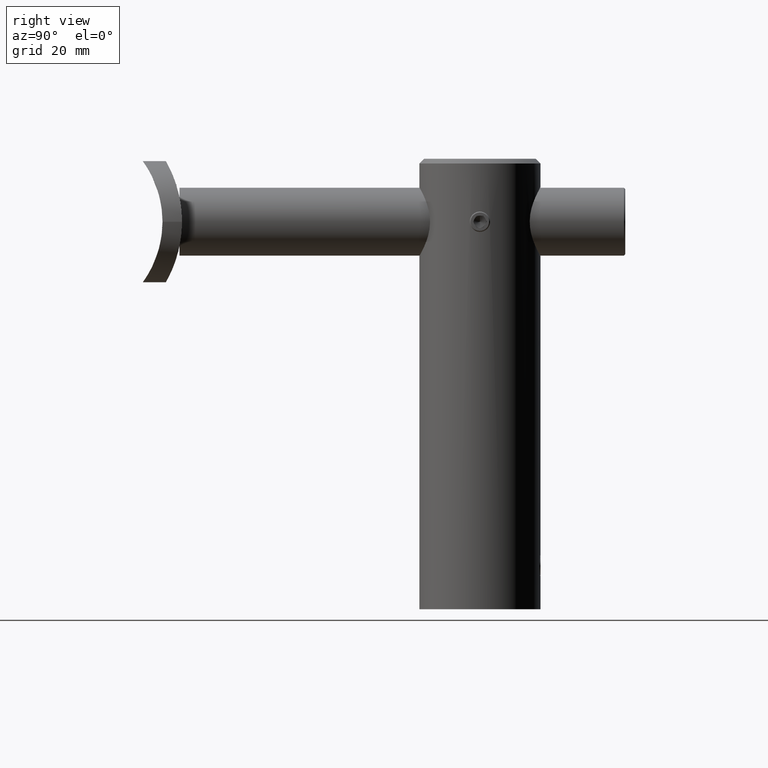
[diagram: clean part render]
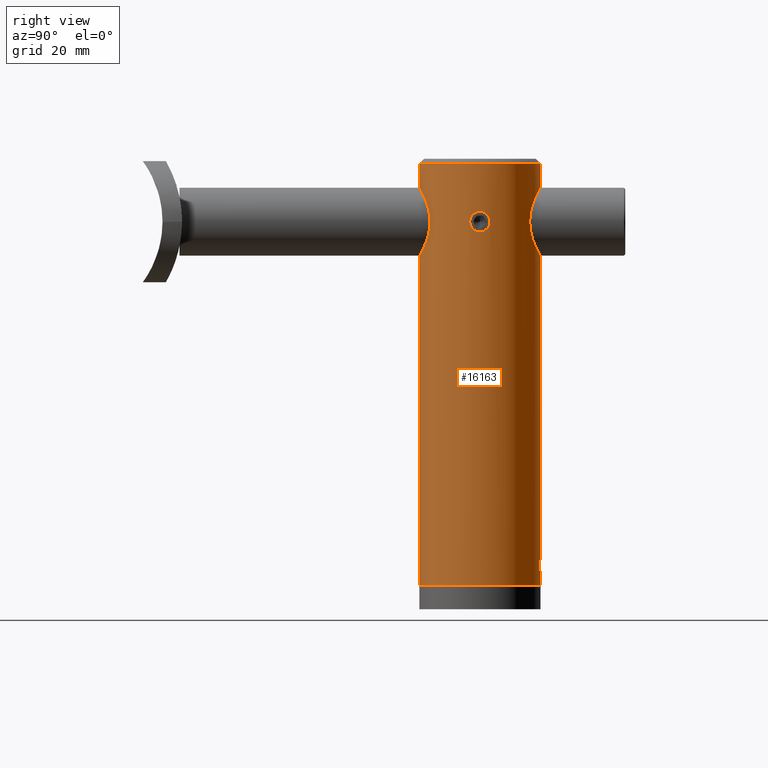
[diagram: same view with one face highlighted and labeled with its STEP entity id]
A machine part, right view. The second image highlights one B-rep face of the part: STEP entity #16163.
In plain terms, the highlighted cylindrical surface (partial cylindrical patch) has radius 12.5 mm, axis along (0, 0, -1).
Its self-contained STEP definition (entity closure, byte-faithful):
#30 = CARTESIAN_POINT ( 'NONE',  ( 12.32232325748718438, -2.100083223394554999, 74.86252851512971063 ) ) ;
#45 = CARTESIAN_POINT ( 'NONE',  ( -9.798441303750187635E-23, 12.50000000000000355, 1.900000000000005684 ) ) ;
#93 = CARTESIAN_POINT ( 'NONE',  ( 2.086330489974699276, 12.32468933921310850, 3.724121591978968304 ) ) ;
#159 = CIRCLE ( 'NONE', #11856, 12.50000000000000178 ) ;
#162 = CARTESIAN_POINT ( 'NONE',  ( 0.6771302859603564039, 12.48229535687993241, 2.007412991424085025 ) ) ;
#181 = LINE ( 'NONE', #18752, #7036 ) ;
#244 = CARTESIAN_POINT ( 'NONE',  ( 12.43473698676051242, 1.280796030087359538, 73.33015633037285852 ) ) ;
#256 = CARTESIAN_POINT ( 'NONE',  ( 7.099833554373472744, -10.28797178943788104, 74.75572396004345421 ) ) ;
#257 = VERTEX_POINT ( 'NONE', #45 ) ;
#316 = CARTESIAN_POINT ( 'NONE',  ( 2.327268730588589740, -12.28355408712936381, 81.71186112651896849 ) ) ;
#332 = VERTEX_POINT ( 'NONE', #12399 ) ;
#378 = CARTESIAN_POINT ( 'NONE',  ( 6.912668111617618294, -10.41480574227799494, 76.63725143042471188 ) ) ;
#379 = CARTESIAN_POINT ( 'NONE',  ( 1.310074275435993587E-16, 12.49999999999999467, 82.09999999999999432 ) ) ;
#431 = CARTESIAN_POINT ( 'NONE',  ( 12.39978901785039334, 1.582696428115945908, 76.38715167861954569 ) ) ;
#443 = CARTESIAN_POINT ( 'NONE',  ( 4.707102817139631412, -11.58512768093195433, 69.66537265374721244 ) ) ;
#450 = DIRECTION ( 'NONE',  ( -0.000000000000000000, 1.098045870766271941E-16, -1.000000000000000000 ) ) ;
#505 = CARTESIAN_POINT ( 'NONE',  ( 12.49766874747620093, 0.2765420468446641022, 77.08624780064435811 ) ) ;
#513 = CARTESIAN_POINT ( 'NONE',  ( 3.597349250370588170, -11.97780161950915279, 81.13814261268855432 ) ) ;
#738 = CARTESIAN_POINT ( 'NONE',  ( 4.346314444032335800, 11.72684879340800812, 69.36723664936097578 ) ) ;
#802 = CARTESIAN_POINT ( 'NONE',  ( 6.634052515645166181, 10.59483006856256182, 72.45976110248518864 ) ) ;
#882 = CARTESIAN_POINT ( 'NONE',  ( 0.000000000000000000, 12.50000000000000000, 1.372557338457839692E-15 ) ) ;
#931 = CARTESIAN_POINT ( 'NONE',  ( 6.148078400945676592, 10.88734605281069179, 78.58038588945871084 ) ) ;
#936 = LINE ( 'NONE', #12495, #3782 ) ;
#1208 = VERTEX_POINT ( 'NONE', #10619 ) ;
#1370 = CARTESIAN_POINT ( 'NONE',  ( 1.992840048957692511, 12.34023651949286027, 3.323561581767618289 ) ) ;
#1440 = CARTESIAN_POINT ( 'NONE',  ( 2.099895493303238769, 12.32235525086057137, 4.275280821264919595 ) ) ;
#1496 = CARTESIAN_POINT ( 'NONE',  ( 12.33355821179406497, -2.033241785620694575, 74.45712843739981679 ) ) ;
#1575 = ORIENTED_EDGE ( 'NONE', *, *, #17317, .F. ) ;
#1585 = LINE ( 'NONE', #16051, #7720 ) ;
#1628 = CARTESIAN_POINT ( 'NONE',  ( 6.970107993329720685E-17, 12.50000000000000355, 6.099999999999998757 ) ) ;
#1689 = CARTESIAN_POINT ( 'NONE',  ( 12.48211517639016854, -0.6802983101495032603, 73.00854562603635145 ) ) ;
#1749 = EDGE_CURVE ( 'NONE', #8994, #1208, #18185, .T. ) ;
#1755 = CARTESIAN_POINT ( 'NONE',  ( 12.50000000000000178, -4.742557830427097865E-15, 72.90000000000000568 ) ) ;
#1764 = CARTESIAN_POINT ( 'NONE',  ( 4.699254457469034030, -11.58459427111669449, 80.32723125532280051 ) ) ;
#1832 = CARTESIAN_POINT ( 'NONE',  ( 0.9553685758214884860, -12.46569958972208880, 82.03946455910856628 ) ) ;
#1892 = CARTESIAN_POINT ( 'NONE',  ( 12.35680486868406192, 1.887385030941196362, 75.93099846367726968 ) ) ;
#1902 = CARTESIAN_POINT ( 'NONE',  ( 5.637531711305975080, -11.16027666235575388, 79.34016184945231487 ) ) ;
#1941 = CARTESIAN_POINT ( 'NONE',  ( 0.000000000000000000, -6.829089316830601455E-15, 87.00000000000000000 ) ) ;
#1962 = CARTESIAN_POINT ( 'NONE',  ( 6.853982002503374638, -10.45369377733144844, 76.86763025503725544 ) ) ;
#2011 = CARTESIAN_POINT ( 'NONE',  ( 12.33211929933789897, 2.044525624529518470, 74.44799400489414154 ) ) ;
#2024 = CARTESIAN_POINT ( 'NONE',  ( 5.186797260141184474, -11.37442896416549054, 70.14630031359378393 ) ) ;
#2126 = CIRCLE ( 'NONE', #15287, 12.49999999999999645 ) ;
#2248 = CARTESIAN_POINT ( 'NONE',  ( 6.713868405384194382, 10.54423150536102938, 72.67849907081439653 ) ) ;
#2318 = CARTESIAN_POINT ( 'NONE',  ( 2.330508779459668389, 12.28868335539653955, 81.72272208563961726 ) ) ;
#2394 = CARTESIAN_POINT ( 'NONE',  ( 6.364631587517307842, 10.76036465851575663, 78.18015725607449440 ) ) ;
#2456 = CARTESIAN_POINT ( 'NONE',  ( 7.099863319915301396, 10.28795124725935572, 75.48272081303905168 ) ) ;
#2502 = CARTESIAN_POINT ( 'NONE',  ( 1.530808498934191719E-15, -12.50000000000000178, 24.80688495222045375 ) ) ;
#2523 = CARTESIAN_POINT ( 'NONE',  ( 6.722015453373491489, 10.54080125387373634, 77.33161824979872279 ) ) ;
#2531 = VERTEX_POINT ( 'NONE', #11446 ) ;
#2590 = ORIENTED_EDGE ( 'NONE', *, *, #16488, .F. ) ;
#2892 = CARTESIAN_POINT ( 'NONE',  ( 1.887385030941209907, 12.35680486868406369, 3.069001536322709889 ) ) ;
#2915 = VERTEX_POINT ( 'NONE', #4497 ) ;
#3075 = CARTESIAN_POINT ( 'NONE',  ( 12.43448438498407427, -1.292831960822527160, 73.32272558053072942 ) ) ;
#3133 = CARTESIAN_POINT ( 'NONE',  ( 12.36678782163336621, -1.821665953450996689, 76.05369584079291201 ) ) ;
#3276 = CARTESIAN_POINT ( 'NONE',  ( 12.33366651879309472, 2.032587617967170246, 75.54540937349550234 ) ) ;
#3291 = CARTESIAN_POINT ( 'NONE',  ( 4.357488413051599174, -11.72285358696204582, 69.37543835206957965 ) ) ;
#3356 = CARTESIAN_POINT ( 'NONE',  ( 1.479114197289397135E-28, 12.49999999999999645, 67.90000000000000568 ) ) ;
#3415 = CARTESIAN_POINT ( 'NONE',  ( 12.46584558724483216, 0.9321576868460880183, 73.11319783095291314 ) ) ;
#3480 = CARTESIAN_POINT ( 'NONE',  ( 12.42318353256701258, 1.387157736859872204, 76.58269111836068532 ) ) ;
#3492 = CARTESIAN_POINT ( 'NONE',  ( 6.363243337331817351, -10.76119357562657264, 71.81699247692637300 ) ) ;
#3497 = EDGE_CURVE ( 'NONE', #8994, #332, #181, .T. ) ;
#3740 = AXIS2_PLACEMENT_3D ( 'NONE', #11278, #450, #11348 ) ;
#3778 = CARTESIAN_POINT ( 'NONE',  ( 1.869096526884920673, 12.36157828789706592, 68.14638903365943179 ) ) ;
#3782 = VECTOR ( 'NONE', #18777, 1000.000000000000000 ) ;
#3864 = ORIENTED_EDGE ( 'NONE', *, *, #1749, .F. ) ;
#3905 = EDGE_CURVE ( 'NONE', #13220, #2531, #7791, .T. ) ;
#3977 = CARTESIAN_POINT ( 'NONE',  ( 2.319323625872139250, 12.28506725716602510, 68.28537096905358794 ) ) ;
#4119 = EDGE_CURVE ( 'NONE', #14082, #2915, #159, .T. ) ;
#4277 = DIRECTION ( 'NONE',  ( 0.000000000000000000, 1.000000000000000000, 1.098045870766272064E-16 ) ) ;
#4458 = CARTESIAN_POINT ( 'NONE',  ( 0.2756623671610645698, 12.49768326621186709, 6.086332499710207067 ) ) ;
#4497 = CARTESIAN_POINT ( 'NONE',  ( 1.530808498934192507E-15, -12.50000000000000888, 87.00000000000000000 ) ) ;
#4507 = FACE_OUTER_BOUND ( 'NONE', #13014, .T. ) ;
#4571 = CARTESIAN_POINT ( 'NONE',  ( 12.49768328457756361, -0.2762664775608930090, 72.91366271943154231 ) ) ;
#4702 = CARTESIAN_POINT ( 'NONE',  ( 12.32472383621019851, -2.086126021674024056, 75.27716492244429958 ) ) ;
#4762 = LINE ( 'NONE', #9454, #6681 ) ;
#4782 = CARTESIAN_POINT ( 'NONE',  ( 12.48229535687992886, 0.6771302859603445246, 76.99258700857591009 ) ) ;
#4857 = CARTESIAN_POINT ( 'NONE',  ( 7.052734923715451743, -10.32092856185195728, 75.94404489671642011 ) ) ;
#4897 = CARTESIAN_POINT ( 'NONE',  ( 1.054112223713821850, 12.45599735624381665, 2.178589918335490427 ) ) ;
#4909 = CARTESIAN_POINT ( 'NONE',  ( 12.34023651949286204, 1.992840048957679633, 75.67643841823236528 ) ) ;
#4922 = CARTESIAN_POINT ( 'NONE',  ( 6.862816372559793265, -10.44818337300497468, 73.12045813888653356 ) ) ;
#4983 = CARTESIAN_POINT ( 'NONE',  ( 12.45599735624381488, 1.054112223713804752, 76.82141008166449581 ) ) ;
#4992 = CARTESIAN_POINT ( 'NONE',  ( 1.878213508060257553, -12.36018587133493973, 81.85110017035160013 ) ) ;
#5417 = CARTESIAN_POINT ( 'NONE',  ( 2.542285523396216274, 12.24072011514204128, 68.36667086906037127 ) ) ;
#5487 = CARTESIAN_POINT ( 'NONE',  ( 3.186329035902468743, 12.09508519001899174, 68.63805128578243853 ) ) ;
#5600 = DIRECTION ( 'NONE',  ( -0.000000000000000000, 1.098045870766271941E-16, -1.000000000000000000 ) ) ;
#5844 = CARTESIAN_POINT ( 'NONE',  ( 12.50000000000000178, -0.2743003893079722366, 77.10000000000000853 ) ) ;
#5979 = ORIENTED_EDGE ( 'NONE', *, *, #6389, .F. ) ;
#5982 = CARTESIAN_POINT ( 'NONE',  ( 1.669773426702777730, 12.38820982123450243, 2.719165335797718797 ) ) ;
#6120 = CARTESIAN_POINT ( 'NONE',  ( 2.100052025693301072, 12.32232857426644124, 3.863557181503245452 ) ) ;
#6142 = VERTEX_POINT ( 'NONE', #3356 ) ;
#6181 = CARTESIAN_POINT ( 'NONE',  ( 12.34024839959371711, -1.992762697854680631, 74.32340279117751436 ) ) ;
#6260 = CARTESIAN_POINT ( 'NONE',  ( 4.163804789402312245, -11.78780696279486406, 80.75540257205885553 ) ) ;
#6304 = CARTESIAN_POINT ( 'NONE',  ( 0.2765420468446744273, 12.49766874747620449, 1.913752199355624128 ) ) ;
#6314 = CARTESIAN_POINT ( 'NONE',  ( 12.38820982123449710, 1.669773426702765073, 76.28083466420225989 ) ) ;
#6326 = CARTESIAN_POINT ( 'NONE',  ( 6.357972462635661515, -10.76299649604915842, 78.16845701976458827 ) ) ;
#6389 = EDGE_CURVE ( 'NONE', #14082, #10407, #1585, .T. ) ;
#6400 = CARTESIAN_POINT ( 'NONE',  ( 1.874312031601152340, -12.36740688548128020, 68.13568800573899864 ) ) ;
#6452 = CARTESIAN_POINT ( 'NONE',  ( 12.43467607152728505, 1.281348397245117399, 76.66938118794041657 ) ) ;
#6501 = DIRECTION ( 'NONE',  ( 0.000000000000000000, -1.000000000000000000, 0.000000000000000000 ) ) ;
#6514 = CARTESIAN_POINT ( 'NONE',  ( 12.38831158150507861, 1.678584206747418373, 73.70882371637840436 ) ) ;
#6526 = CARTESIAN_POINT ( 'NONE',  ( 2.330455522349840436, -12.28868556496929365, 68.27727600612421099 ) ) ;
#6564 = EDGE_LOOP ( 'NONE', ( #7035, #7164 ) ) ;
#6681 = VECTOR ( 'NONE', #12621, 1000.000000000000000 ) ;
#6948 = CARTESIAN_POINT ( 'NONE',  ( 5.633085906007541332, 11.16254692090159928, 70.65396086375710638 ) ) ;
#7013 = CARTESIAN_POINT ( 'NONE',  ( 6.863499158220037977, 10.44773442666879859, 76.87726417523570888 ) ) ;
#7035 = ORIENTED_EDGE ( 'NONE', *, *, #7170, .F. ) ;
#7036 = VECTOR ( 'NONE', #8045, 1000.000000000000000 ) ;
#7164 = ORIENTED_EDGE ( 'NONE', *, *, #3905, .F. ) ;
#7170 = EDGE_CURVE ( 'NONE', #2531, #13220, #14471, .T. ) ;
#7503 = CARTESIAN_POINT ( 'NONE',  ( 1.281348397245135606, 12.43467607152728860, 2.330618812059590095 ) ) ;
#7566 = CARTESIAN_POINT ( 'NONE',  ( 12.48874150837816721, -0.5474908082749004867, 72.96791234692787498 ) ) ;
#7568 = CARTESIAN_POINT ( 'NONE',  ( 1.052690134217554307, 12.45612162279729951, 5.822267772036405553 ) ) ;
#7628 = CARTESIAN_POINT ( 'NONE',  ( 12.36656387944244351, -1.823189292361678371, 73.94888903341586683 ) ) ;
#7720 = VECTOR ( 'NONE', #11606, 1000.000000000000000 ) ;
#7730 = ORIENTED_EDGE ( 'NONE', *, *, #19212, .F. ) ;
#7779 = CARTESIAN_POINT ( 'NONE',  ( 3.591928364928691053, -11.97960984808972817, 68.85822097251374885 ) ) ;
#7791 = B_SPLINE_CURVE_WITH_KNOTS ( 'NONE', 3,
 ( #19411, #5844, #15258, #10606, #10484, #13654, #16701, #18153, #9217, #3133, #9083, #18215, #19536, #4702, #12124, #30, #10732, #1496, #6181, #16585, #7628, #11997, #10674, #3075, #16518, #1689, #7566, #4571, #13727, #10542 ),
 .UNSPECIFIED., .F., .F.,
 ( 4, 2, 2, 2, 2, 2, 2, 2, 2, 2, 2, 2, 2, 2, 4 ),
 ( 0.006577226265834288862, 0.007399174158320342629, 0.007810148104563369512, 0.008221122050806396395, 0.008632095997049421543, 0.009043069943292448426, 0.009454043889535475309, 0.009865017835778502192, 0.01027599178202152908, 0.01068696572826455596, 0.01109793967450758284, 0.01150891362075060972, 0.01233086151323666349, 0.01274183545947968343, 0.01315280940572270164 ),
 .UNSPECIFIED. ) ;
#7850 = CARTESIAN_POINT ( 'NONE',  ( 6.715641276056541820, -10.54309940824727754, 77.31630617827099172 ) ) ;
#7909 = CARTESIAN_POINT ( 'NONE',  ( 7.087426699821463671, -10.29656404782430634, 74.51571112368854699 ) ) ;
#7979 = CARTESIAN_POINT ( 'NONE',  ( 1.650620416519913647, -12.39271462522873435, 81.90947881661519148 ) ) ;
#8040 = CARTESIAN_POINT ( 'NONE',  ( 12.32232857426643946, 2.100052025693282420, 75.13644281849676076 ) ) ;
#8045 = DIRECTION ( 'NONE',  ( -0.000000000000000000, 1.098045870766271941E-16, -1.000000000000000000 ) ) ;
#8049 = CARTESIAN_POINT ( 'NONE',  ( 5.765905370694647480, -11.09166530797233463, 70.85077256676534319 ) ) ;
#8469 = CARTESIAN_POINT ( 'NONE',  ( 6.355184909898127010, 10.76464359171547613, 71.82596901323130112 ) ) ;
#8544 = CARTESIAN_POINT ( 'NONE',  ( 6.454712516760546137, 10.70503448327140994, 72.03349485711549960 ) ) ;
#8552 = FACE_BOUND ( 'NONE', #6564, .T. ) ;
#8777 = CYLINDRICAL_SURFACE ( 'NONE', #3740, 12.50000000000000178 ) ;
#8994 = VERTEX_POINT ( 'NONE', #16707 ) ;
#9083 = CARTESIAN_POINT ( 'NONE',  ( 12.35697594623955098, -1.886269248244670571, 75.93326108111170925 ) ) ;
#9107 = CARTESIAN_POINT ( 'NONE',  ( 1.530808498934021719E-15, -12.50000000000000711, 67.90000000000000568 ) ) ;
#9130 = VERTEX_POINT ( 'NONE', #1628 ) ;
#9155 = CARTESIAN_POINT ( 'NONE',  ( 0.9321576868460960119, 12.46584558724483216, 5.886802169047096633 ) ) ;
#9217 = CARTESIAN_POINT ( 'NONE',  ( 12.38825472392713323, -1.669446844424482990, 76.28128412325601460 ) ) ;
#9288 = CARTESIAN_POINT ( 'NONE',  ( 12.48225234873649114, 0.6779383900031811239, 73.00767976529198222 ) ) ;
#9363 = CARTESIAN_POINT ( 'NONE',  ( 6.139503581357959483, -10.88909560909869789, 78.57343385222416998 ) ) ;
#9431 = CARTESIAN_POINT ( 'NONE',  ( 5.339170464550233142, -11.30350596078847580, 70.31435362947013346 ) ) ;
#9454 = CARTESIAN_POINT ( 'NONE',  ( 0.000000000000000000, 12.50000000000000178, 24.80688495222045375 ) ) ;
#9555 = CARTESIAN_POINT ( 'NONE',  ( 12.32468933921311027, 2.086330489974682401, 75.27587840802104324 ) ) ;
#9565 = CARTESIAN_POINT ( 'NONE',  ( 4.868944799639090881, -11.51408151635098776, 80.17252493070223807 ) ) ;
#9667 = B_SPLINE_CURVE_WITH_KNOTS ( 'NONE', 3,
 ( #17138, #17276, #18719, #9731, #2318, #9996, #12957, #17537, #9855, #19046, #14563, #11298, #17601, #931, #2394, #2523, #7013, #14436, #2456, #13035, #17338, #17463, #9790, #2248, #802, #8544, #8469, #11433, #15953, #6948, #11371, #11499, #738, #12832, #5487, #5417, #3977, #3778, #14363, #16092, #19110, #18845 ),
 .UNSPECIFIED., .F., .F.,
 ( 4, 2, 2, 2, 2, 2, 2, 2, 2, 2, 2, 2, 2, 2, 2, 2, 2, 2, 2, 2, 4 ),
 ( 4.194532707431236113E-19, 0.001419307301426396073, 0.002838614602852791713, 0.004257921904279187569, 0.005677229205705584293, 0.006386882856418795232, 0.007096536507132008773, 0.008515843808558432385, 0.009935151109984857731, 0.01135445841141128134, 0.01277376571283770669, 0.01348341936355092197, 0.01419307301426413377, 0.01490272666497734731, 0.01561238031569055912, 0.01703168761711695151, 0.01845099491854334736, 0.01987030221996973975, 0.02057995587068293594, 0.02128960952139613561, 0.02270891682282252799 ),
 .UNSPECIFIED. ) ;
#9731 = CARTESIAN_POINT ( 'NONE',  ( 1.874052461373487244, 12.36744064349517558, 81.86437246242219601 ) ) ;
#9790 = CARTESIAN_POINT ( 'NONE',  ( 6.852873825890775983, 10.45442333798881940, 73.12823189057861839 ) ) ;
#9855 = CARTESIAN_POINT ( 'NONE',  ( 4.708029709747258096, 11.58475042720363923, 80.33381269667307834 ) ) ;
#9952 = ORIENTED_EDGE ( 'NONE', *, *, #3497, .T. ) ;
#9996 = CARTESIAN_POINT ( 'NONE',  ( 3.187496164584713298, 12.09474588327907973, 81.36129952231796381 ) ) ;
#10291 = CARTESIAN_POINT ( 'NONE',  ( 0.000000000000000000, 2.723909758835963716E-15, 0.000000000000000000 ) ) ;
#10325 = EDGE_CURVE ( 'NONE', #2915, #1208, #17613, .T. ) ;
#10407 = VERTEX_POINT ( 'NONE', #379 ) ;
#10427 = CARTESIAN_POINT ( 'NONE',  ( 2.032587617967188898, 12.33366651879309295, 3.454590626504497219 ) ) ;
#10484 = CARTESIAN_POINT ( 'NONE',  ( 12.45612933409647027, -1.052645575539829403, 76.82233367382804090 ) ) ;
#10486 = CARTESIAN_POINT ( 'NONE',  ( 2.044525624529536234, 12.33211929933789897, 4.552005995105875336 ) ) ;
#10542 = CARTESIAN_POINT ( 'NONE',  ( 12.50000000000000178, -4.742557830427097865E-15, 72.90000000000000568 ) ) ;
#10606 = CARTESIAN_POINT ( 'NONE',  ( 12.46598422166855080, -0.9302022205380996445, 76.88770713018109859 ) ) ;
#10610 = CARTESIAN_POINT ( 'NONE',  ( 0.6779383900031874521, 12.48225234873649292, 5.992320234708012450 ) ) ;
#10619 = CARTESIAN_POINT ( 'NONE',  ( 1.290313625304569330E-16, -12.50000000000000888, 82.09999999999999432 ) ) ;
#10674 = CARTESIAN_POINT ( 'NONE',  ( 12.39980942031196776, -1.582460249035305688, 73.61274171492630103 ) ) ;
#10732 = CARTESIAN_POINT ( 'NONE',  ( 12.32465138950227512, -2.086551808546025288, 74.72598678402806627 ) ) ;
#10734 = CARTESIAN_POINT ( 'NONE',  ( 0.1371844661457304326, 12.50000000000000178, 1.900000000000005684 ) ) ;
#10810 = CARTESIAN_POINT ( 'NONE',  ( 12.45612162279729951, 1.052690134217543205, 73.17773222796360244 ) ) ;
#10890 = CARTESIAN_POINT ( 'NONE',  ( 1.189197617727922207, -12.44547036346078528, 82.00366006475731240 ) ) ;
#10942 = CARTESIAN_POINT ( 'NONE',  ( 12.32235525086057493, 2.099895493303221894, 74.72471917873511416 ) ) ;
#10954 = CARTESIAN_POINT ( 'NONE',  ( 0.4799539051028673953, -12.50000000000000711, 67.90000000000001990 ) ) ;
#11017 = CARTESIAN_POINT ( 'NONE',  ( 3.187016512190910422, -12.09486426576826013, 68.63847765149670010 ) ) ;
#11081 = CARTESIAN_POINT ( 'NONE',  ( 2.549971958430633290, -12.23912789366318066, 81.63039500168848406 ) ) ;
#11278 = CARTESIAN_POINT ( 'NONE',  ( 0.000000000000000000, 0.000000000000000000, 24.80688495222045375 ) ) ;
#11298 = CARTESIAN_POINT ( 'NONE',  ( 5.629205280336356587, 11.16189758074910543, 79.33288889108355590 ) ) ;
#11344 = ORIENTED_EDGE ( 'NONE', *, *, #14967, .F. ) ;
#11348 = DIRECTION ( 'NONE',  ( 0.000000000000000000, 1.000000000000000000, 0.000000000000000000 ) ) ;
#11371 = CARTESIAN_POINT ( 'NONE',  ( 5.345048310374299838, 11.30501070537478547, 70.30460859623607917 ) ) ;
#11433 = CARTESIAN_POINT ( 'NONE',  ( 6.136548808116673470, 10.89076193942644899, 71.42150636865642355 ) ) ;
#11446 = CARTESIAN_POINT ( 'NONE',  ( 12.50000000000000178, -4.742557830427097865E-15, 72.90000000000000568 ) ) ;
#11499 = CARTESIAN_POINT ( 'NONE',  ( 4.703273353215213781, 11.58671775153815275, 69.66188594729271699 ) ) ;
#11606 = DIRECTION ( 'NONE',  ( -0.000000000000000000, 1.098045870766271941E-16, -1.000000000000000000 ) ) ;
#11856 = AXIS2_PLACEMENT_3D ( 'NONE', #1941, #18478, #6501 ) ;
#11936 = CARTESIAN_POINT ( 'NONE',  ( 1.582696428115959231, 12.39978901785039511, 2.612848321380438321 ) ) ;
#11997 = CARTESIAN_POINT ( 'NONE',  ( 12.38807301078725409, -1.670798748957228019, 73.72043562086983570 ) ) ;
#12002 = CARTESIAN_POINT ( 'NONE',  ( 1.821708534087455478, 12.36678065982762753, 2.946406743388207961 ) ) ;
#12098 = CARTESIAN_POINT ( 'NONE',  ( 0.000000000000000000, 12.49999999999999467, 87.00000000000000000 ) ) ;
#12124 = CARTESIAN_POINT ( 'NONE',  ( 12.32235175367555691, -2.099916014006711684, 75.14000245874221662 ) ) ;
#12126 = CARTESIAN_POINT ( 'NONE',  ( 0.5444173614143056339, 12.48886249823464745, 6.032826302615787561 ) ) ;
#12336 = CARTESIAN_POINT ( 'NONE',  ( 12.42301355294200249, 1.388600539506594567, 73.41870817831934914 ) ) ;
#12347 = CARTESIAN_POINT ( 'NONE',  ( 7.039363743819930797, -10.32948239257339651, 74.04422229401671984 ) ) ;
#12385 = CARTESIAN_POINT ( 'NONE',  ( 0.5462078688293401374, 12.48878923632492821, 1.967621503411471906 ) ) ;
#12399 = CARTESIAN_POINT ( 'NONE',  ( 1.530808498934191324E-15, -12.49999999999999289, -1.372557338457839692E-15 ) ) ;
#12461 = EDGE_CURVE ( 'NONE', #9130, #257, #16760, .T. ) ;
#12470 = CARTESIAN_POINT ( 'NONE',  ( 3.195008394635590054, -12.09282248704223406, 81.35766473062263060 ) ) ;
#12495 = CARTESIAN_POINT ( 'NONE',  ( 0.000000000000000000, 12.50000000000000178, 24.80688495222045375 ) ) ;
#12541 = CARTESIAN_POINT ( 'NONE',  ( 6.019886174600847184, -10.95590503741819610, 78.77136084374127734 ) ) ;
#12621 = DIRECTION ( 'NONE',  ( -0.000000000000000000, 1.098045870766271941E-16, -1.000000000000000000 ) ) ;
#12792 = ORIENTED_EDGE ( 'NONE', *, *, #4119, .T. ) ;
#12832 = CARTESIAN_POINT ( 'NONE',  ( 3.589032839019617338, 11.98032867455219908, 68.85692947369598471 ) ) ;
#12957 = CARTESIAN_POINT ( 'NONE',  ( 3.592029824636716384, 11.97955674781279534, 81.14166018535317448 ) ) ;
#13014 = EDGE_LOOP ( 'NONE', ( #12792, #16774, #3864, #9952, #2590, #11344, #15708, #1575, #7730, #5979 ) ) ;
#13035 = CARTESIAN_POINT ( 'NONE',  ( 7.100136108486190700, 10.28776298659891708, 74.52130825598263186 ) ) ;
#13220 = VERTEX_POINT ( 'NONE', #17097 ) ;
#13343 = DIRECTION ( 'NONE',  ( -0.000000000000000000, 1.098045870766271941E-16, -1.000000000000000000 ) ) ;
#13654 = CARTESIAN_POINT ( 'NONE',  ( 12.43465773738692803, -1.281603546142748185, 76.66926782661904838 ) ) ;
#13658 = CARTESIAN_POINT ( 'NONE',  ( 1.280796030087371973, 12.43473698676050887, 5.669843669627169014 ) ) ;
#13727 = CARTESIAN_POINT ( 'NONE',  ( 12.50000000000000533, -0.1389824923851714633, 72.90000000000000568 ) ) ;
#13796 = CARTESIAN_POINT ( 'NONE',  ( -9.798441303750187635E-23, 12.50000000000000355, 1.900000000000005684 ) ) ;
#13814 = CARTESIAN_POINT ( 'NONE',  ( 4.346392963122590380, -11.72154789661121477, 80.61883026206071179 ) ) ;
#13863 = CARTESIAN_POINT ( 'NONE',  ( 12.36678065982762575, 1.821708534087441045, 76.05359325661177650 ) ) ;
#13876 = CARTESIAN_POINT ( 'NONE',  ( 6.721338987096790341, -10.54124068422390081, 72.66633231102332502 ) ) ;
#14001 = CARTESIAN_POINT ( 'NONE',  ( 12.50000000000000178, -8.927675263775713921E-15, 77.09999999999999432 ) ) ;
#14012 = CARTESIAN_POINT ( 'NONE',  ( 0.9511822130778535556, -12.47241159761731844, 67.94825715557603019 ) ) ;
#14070 = CARTESIAN_POINT ( 'NONE',  ( 5.350137245759823301, -11.30260226496381648, 79.68962492468294556 ) ) ;
#14082 = VERTEX_POINT ( 'NONE', #12098 ) ;
#14363 = CARTESIAN_POINT ( 'NONE',  ( 1.641484044854722990, 12.39391654726003900, 68.08836762162168554 ) ) ;
#14436 = CARTESIAN_POINT ( 'NONE',  ( 7.051303418075907992, 10.32191336193627151, 75.95439068768588697 ) ) ;
#14471 = B_SPLINE_CURVE_WITH_KNOTS ( 'NONE', 3,
 ( #1755, #15596, #17036, #16970, #9288, #3415, #10810, #244, #12336, #6514, #15664, #2011, #10942, #8040, #9555, #3276, #4909, #1892, #13863, #6314, #431, #3480, #6452, #4983, #15409, #4782, #18351, #505, #15529, #14001 ),
 .UNSPECIFIED., .F., .F.,
 ( 4, 2, 2, 2, 2, 2, 2, 2, 2, 2, 2, 2, 2, 2, 4 ),
 ( 5.694991699657585544E-19, 0.0004110766416146334587, 0.0008221532832292662669, 0.001233229924843899346, 0.001644306566458532100, 0.002466459849687796958, 0.003288613132917062466, 0.003699689774531715169, 0.004110766416146369173, 0.004521843057761021877, 0.004932919699375675447, 0.005343996340990329018, 0.005755072982604982589, 0.006166149624219635292, 0.006577226265834288862 ),
 .UNSPECIFIED. ) ;
#14563 = CARTESIAN_POINT ( 'NONE',  ( 5.339918604441929340, 11.30314907400740232, 79.68477827955356929 ) ) ;
#14967 = EDGE_CURVE ( 'NONE', #257, #16880, #4762, .T. ) ;
#15007 = CARTESIAN_POINT ( 'NONE',  ( 6.970107993329720685E-17, 12.50000000000000355, 6.099999999999998757 ) ) ;
#15202 = CARTESIAN_POINT ( 'NONE',  ( 1.678584206747425256, 12.38831158150507861, 5.291176283621599197 ) ) ;
#15258 = CARTESIAN_POINT ( 'NONE',  ( 12.49041604070637135, -0.5510555997337337475, 77.04479711651897844 ) ) ;
#15260 = CARTESIAN_POINT ( 'NONE',  ( 1.388600539506599674, 12.42301355294200249, 5.581291821680668619 ) ) ;
#15287 = AXIS2_PLACEMENT_3D ( 'NONE', #10291, #13343, #4277 ) ;
#15347 = CARTESIAN_POINT ( 'NONE',  ( 0.2397798003476037387, -12.50000000000000888, 82.09999999999998010 ) ) ;
#15409 = CARTESIAN_POINT ( 'NONE',  ( 12.46591754872634539, 0.9311833701841214506, 76.88727473940672041 ) ) ;
#15421 = CARTESIAN_POINT ( 'NONE',  ( 0.4811991486314973754, -12.49299174562366765, 82.08768211575332430 ) ) ;
#15520 = CARTESIAN_POINT ( 'NONE',  ( 0.9311833701841346622, 12.46591754872634716, 2.112725260593256937 ) ) ;
#15529 = CARTESIAN_POINT ( 'NONE',  ( 12.49999999999999645, 0.1371844661457215231, 77.09999999999996589 ) ) ;
#15542 = CARTESIAN_POINT ( 'NONE',  ( 7.003725121456045422, -10.35379304955139546, 73.81127548781324776 ) ) ;
#15596 = CARTESIAN_POINT ( 'NONE',  ( 12.50000000000000355, 0.1390172217368248475, 72.90000000000000568 ) ) ;
#15664 = CARTESIAN_POINT ( 'NONE',  ( 12.36503985059749766, 1.834949845525997825, 73.94276080644216620 ) ) ;
#15708 = ORIENTED_EDGE ( 'NONE', *, *, #12461, .F. ) ;
#15953 = CARTESIAN_POINT ( 'NONE',  ( 6.016811922509472943, 10.95760019053421708, 71.22370518382082594 ) ) ;
#16051 = CARTESIAN_POINT ( 'NONE',  ( 0.000000000000000000, 12.50000000000000178, 24.80688495222045375 ) ) ;
#16092 = CARTESIAN_POINT ( 'NONE',  ( 0.9511355239451539934, 12.47236506100287556, 67.94834280267892268 ) ) ;
#16163 = ADVANCED_FACE ( 'NONE', ( #8552, #4507 ), #8777, .T. ) ;
#16488 = EDGE_CURVE ( 'NONE', #16880, #332, #2126, .T. ) ;
#16518 = CARTESIAN_POINT ( 'NONE',  ( 12.45762628977003850, -1.059040836926603113, 73.16609221518450568 ) ) ;
#16585 = CARTESIAN_POINT ( 'NONE',  ( 12.35677335900393281, -1.887587319264240504, 74.06946194860161370 ) ) ;
#16587 = CARTESIAN_POINT ( 'NONE',  ( 1.387157736859883972, 12.42318353256700902, 2.417308881639297802 ) ) ;
#16670 = VECTOR ( 'NONE', #5600, 1000.000000000000000 ) ;
#16701 = CARTESIAN_POINT ( 'NONE',  ( 12.42317581721323272, -1.387160506701222706, 76.58256676668652574 ) ) ;
#16707 = CARTESIAN_POINT ( 'NONE',  ( 1.530808498934021719E-15, -12.50000000000000711, 67.90000000000000568 ) ) ;
#16760 = B_SPLINE_CURVE_WITH_KNOTS ( 'NONE', 3,
 ( #15007, #18217, #4458, #12126, #10610, #9155, #7568, #13658, #15260, #15202, #19539, #10486, #1440, #6120, #93, #10427, #1370, #2892, #12002, #5982, #11936, #16587, #7503, #4897, #15520, #162, #12385, #6304, #10734, #13796 ),
 .UNSPECIFIED., .F., .F.,
 ( 4, 2, 2, 2, 2, 2, 2, 2, 2, 2, 2, 2, 2, 2, 4 ),
 ( 2.806614994676047085E-20, 0.0004110766416146458728, 0.0008221532832292916372, 0.001233229924843937944, 0.001644306566458583925, 0.002466459849687873719, 0.003288613132917163513, 0.003699689774531809711, 0.004110766416146454175, 0.004521843057761099072, 0.004932919699375744836, 0.005343996340990389733, 0.005755072982605034630, 0.006166149624219679527, 0.006577226265834324424 ),
 .UNSPECIFIED. ) ;
#16774 = ORIENTED_EDGE ( 'NONE', *, *, #10325, .T. ) ;
#16861 = CARTESIAN_POINT ( 'NONE',  ( 1.290313625304569330E-16, -12.50000000000000888, 82.09999999999999432 ) ) ;
#16880 = VERTEX_POINT ( 'NONE', #882 ) ;
#16970 = CARTESIAN_POINT ( 'NONE',  ( 12.48886249823464389, 0.5444173614142989726, 72.96717369738421155 ) ) ;
#16980 = CARTESIAN_POINT ( 'NONE',  ( 5.628902018887845138, -11.16205403663978579, 70.66670042335572077 ) ) ;
#17036 = CARTESIAN_POINT ( 'NONE',  ( 12.49768326621186532, 0.2756623671610598514, 72.91366750028979027 ) ) ;
#17047 = CARTESIAN_POINT ( 'NONE',  ( 6.457309689604065817, -10.70346527864367303, 77.96083301754553929 ) ) ;
#17097 = CARTESIAN_POINT ( 'NONE',  ( 12.50000000000000178, -8.927675263775713921E-15, 77.09999999999999432 ) ) ;
#17138 = CARTESIAN_POINT ( 'NONE',  ( 1.310074275435993587E-16, 12.49999999999999467, 82.09999999999999432 ) ) ;
#17276 = CARTESIAN_POINT ( 'NONE',  ( 0.4805659640073335348, 12.49999999999999822, 82.09999999999998010 ) ) ;
#17317 = EDGE_CURVE ( 'NONE', #6142, #9130, #936, .T. ) ;
#17338 = CARTESIAN_POINT ( 'NONE',  ( 7.051980222211308380, 10.32144769786893868, 74.05050001367736456 ) ) ;
#17463 = CARTESIAN_POINT ( 'NONE',  ( 6.911509236011332824, 10.41557569167954611, 73.35788736678887290 ) ) ;
#17537 = CARTESIAN_POINT ( 'NONE',  ( 4.356324323330966308, 11.72326304938611230, 80.62539833997442429 ) ) ;
#17601 = CARTESIAN_POINT ( 'NONE',  ( 5.766588826831745784, 11.09131400361184028, 79.14830821994482335 ) ) ;
#17613 = LINE ( 'NONE', #2502, #16670 ) ;
#18153 = CARTESIAN_POINT ( 'NONE',  ( 12.40001885819545357, -1.580836478937788447, 76.38913205608098167 ) ) ;
#18185 = B_SPLINE_CURVE_WITH_KNOTS ( 'NONE', 3,
 ( #9107, #10954, #14012, #6400, #6526, #11017, #7779, #3291, #443, #2024, #9431, #16980, #8049, #18433, #3492, #13876, #4922, #15542, #12347, #7909, #256, #18627, #4857, #378, #1962, #7850, #18501, #17047, #6326, #9363, #12541, #1902, #14070, #9565, #1764, #13814, #6260, #513, #12470, #11081, #316, #4992, #7979, #10890, #1832, #15421, #15347, #16861 ),
 .UNSPECIFIED., .F., .F.,
 ( 4, 2, 2, 2, 2, 2, 2, 2, 2, 2, 2, 2, 2, 2, 2, 2, 2, 2, 2, 2, 2, 2, 2, 4 ),
 ( 0.02270891682282252105, 0.02412525192292018159, 0.02554158702301784212, 0.02695792212311549918, 0.02837425722321315971, 0.02908242477326198824, 0.02979059232331081677, 0.03120692742340847731, 0.03262326252350613437, 0.03333143007355496290, 0.03403959762360379143, 0.03545593272370141380, 0.03616410027375022151, 0.03687226782379903617, 0.03758043537384784388, 0.03828860292389665854, 0.03970493802399423233, 0.04041310557404302617, 0.04112127312409182001, 0.04253760822418942156, 0.04324577577423822233, 0.04395394332428701617, 0.04466211087433581001, 0.04537027842438460384 ),
 .UNSPECIFIED. ) ;
#18215 = CARTESIAN_POINT ( 'NONE',  ( 12.34036526571288661, -1.992047017919829077, 75.67877581040282564 ) ) ;
#18217 = CARTESIAN_POINT ( 'NONE',  ( 0.1390172217368305929, 12.50000000000000355, 6.099999999999996092 ) ) ;
#18351 = CARTESIAN_POINT ( 'NONE',  ( 12.48878923632492288, 0.5462078688293278139, 77.03237849658850678 ) ) ;
#18433 = CARTESIAN_POINT ( 'NONE',  ( 6.146595381488634047, -10.88816703618160275, 71.41721095202191805 ) ) ;
#18478 = DIRECTION ( 'NONE',  ( -0.000000000000000000, 1.098045870766268366E-16, -1.000000000000000000 ) ) ;
#18501 = CARTESIAN_POINT ( 'NONE',  ( 6.636142668883756812, -10.59351820108908981, 77.53475660832806682 ) ) ;
#18627 = CARTESIAN_POINT ( 'NONE',  ( 7.100327846217662220, -10.28763066194223441, 75.47389198161975798 ) ) ;
#18719 = CARTESIAN_POINT ( 'NONE',  ( 0.9512168273055813250, 12.47240342699862836, 82.05172804908777096 ) ) ;
#18752 = CARTESIAN_POINT ( 'NONE',  ( 1.530808498934191719E-15, -12.50000000000000178, 24.80688495222045375 ) ) ;
#18777 = DIRECTION ( 'NONE',  ( -0.000000000000000000, 1.098045870766271941E-16, -1.000000000000000000 ) ) ;
#18845 = CARTESIAN_POINT ( 'NONE',  ( 1.479114197289397135E-28, 12.49999999999999645, 67.90000000000000568 ) ) ;
#19046 = CARTESIAN_POINT ( 'NONE',  ( 5.187679897919521110, 11.37402628047061448, 79.85275722496861306 ) ) ;
#19110 = CARTESIAN_POINT ( 'NONE',  ( 0.4809610958689473081, 12.50000000000000000, 67.90000000000000568 ) ) ;
#19212 = EDGE_CURVE ( 'NONE', #10407, #6142, #9667, .T. ) ;
#19411 = CARTESIAN_POINT ( 'NONE',  ( 12.50000000000000178, -8.927675263775713921E-15, 77.09999999999999432 ) ) ;
#19536 = CARTESIAN_POINT ( 'NONE',  ( 12.33368337160504602, -2.032484663200843755, 75.54566314369984070 ) ) ;
#19539 = CARTESIAN_POINT ( 'NONE',  ( 1.834949845526015144, 12.36503985059750121, 5.057239193557812484 ) ) ;